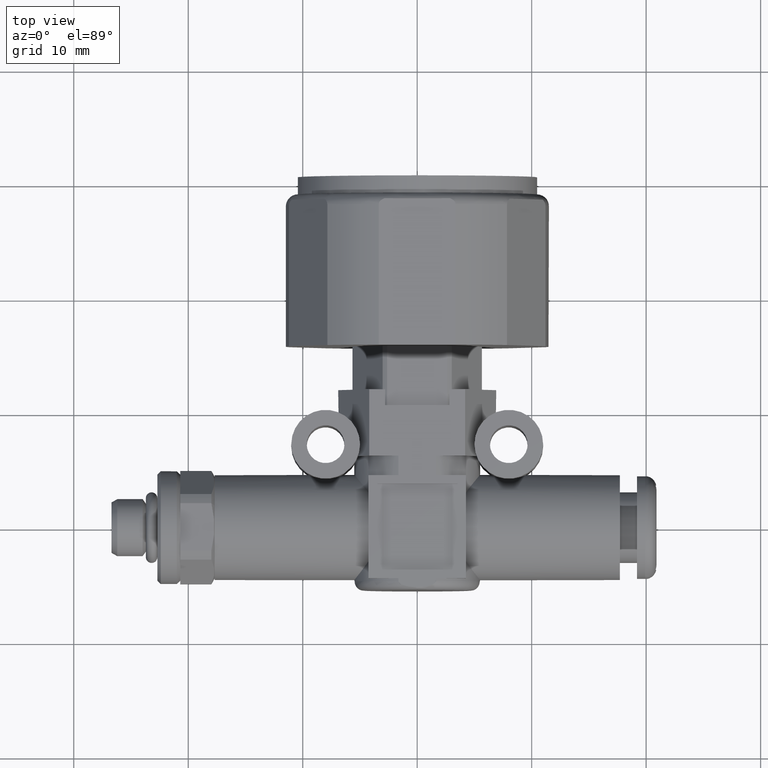
[diagram: clean part render]
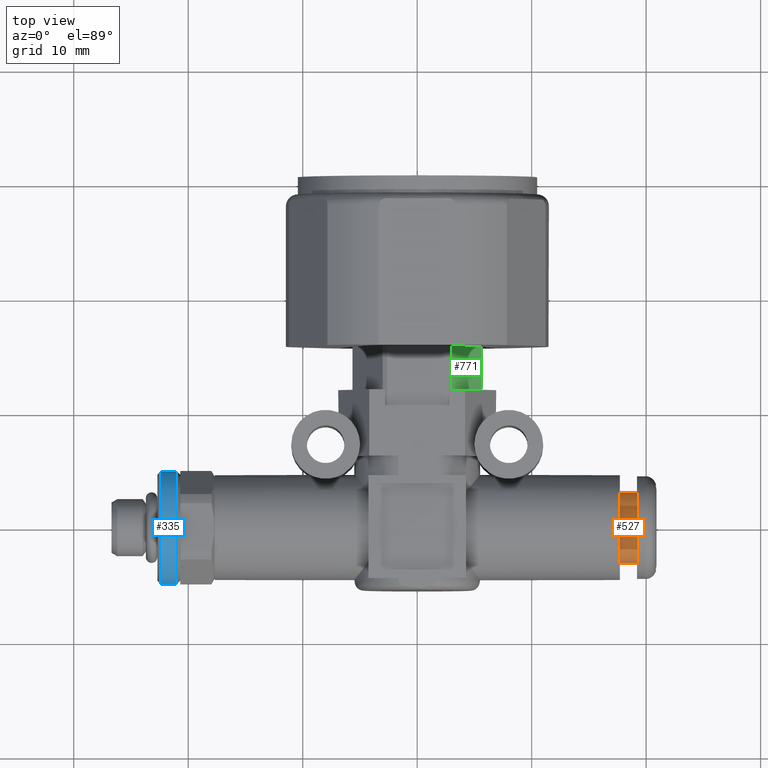
[diagram: same view with three faces highlighted in distinct colors, each labeled with its STEP entity id]
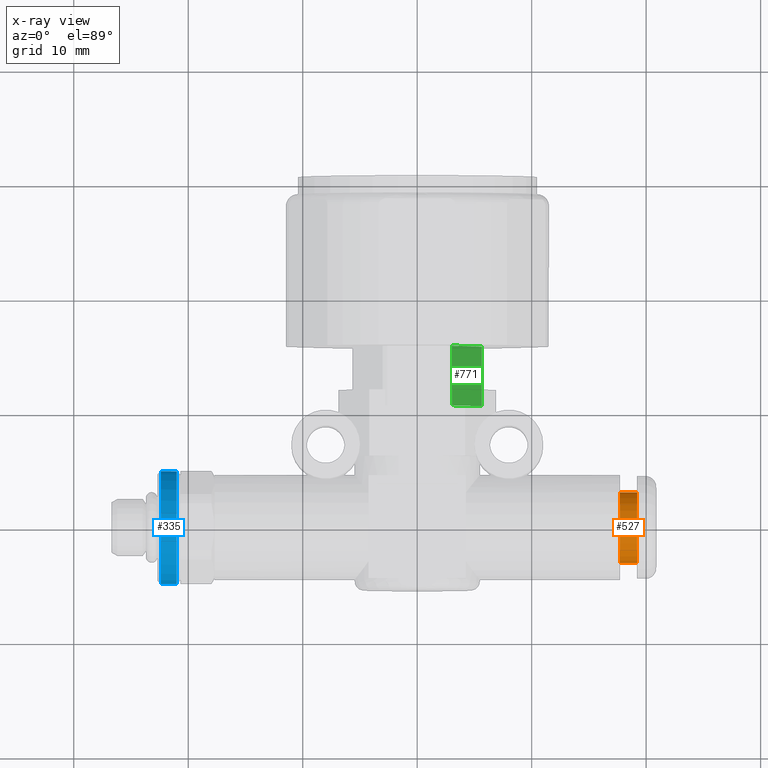
[diagram: x-ray of the same camera — body ghosted, the three highlighted faces saturated]
A machine part, top view with three faces highlighted in distinct colors.
The next image is the same camera in x-ray (body ghosted, the three faces saturated) — at least one of them is partly hidden behind the body in this view.
Their STEP definitions:

[orange] entity #527 — the highlighted cylindrical surface (bore or boss wall) has radius 3.1 mm, axis along (1, 0, 0).
#527 = ADVANCED_FACE( '', ( #1166, #1167 ), #1168, .T. );
#1166 = FACE_OUTER_BOUND( '', #1952, .T. );
#1167 = FACE_OUTER_BOUND( '', #1953, .T. );
#1168 = CYLINDRICAL_SURFACE( '', #1954, 3.10000000000000 );
#1952 = EDGE_LOOP( '', ( #3205 ) );
#1953 = EDGE_LOOP( '', ( #3206 ) );
#1954 = AXIS2_PLACEMENT_3D( '', #3207, #3208, #3209 );
#3205 = ORIENTED_EDGE( '', *, *, #4602, .F. );
#3206 = ORIENTED_EDGE( '', *, *, #4536, .T. );
#3207 = CARTESIAN_POINT( '', ( 8.90000000000000, 0.000000000000000, 0.000000000000000 ) );
#3208 = DIRECTION( '', ( -1.00000000000000, -0.000000000000000, 0.000000000000000 ) );
#3209 = DIRECTION( '', ( -0.000000000000000, 0.000000000000000, -1.00000000000000 ) );
#4536 = EDGE_CURVE( '', #5445, #5445, #5446, .T. );
#4602 = EDGE_CURVE( '', #5553, #5553, #5554, .T. );
#5445 = VERTEX_POINT( '', #6967 );
#5446 = CIRCLE( '', #6968, 3.10000000000000 );
#5553 = VERTEX_POINT( '', #7110 );
#5554 = CIRCLE( '', #7111, 3.10000000000000 );
#6967 = CARTESIAN_POINT( '', ( 1.70000000000000, 0.000000000000000, -3.10000000000000 ) );
#6968 = AXIS2_PLACEMENT_3D( '', #8369, #8370, #8371 );
#7110 = CARTESIAN_POINT( '', ( 3.20000000000000, 0.000000000000000, -3.10000000000000 ) );
#7111 = AXIS2_PLACEMENT_3D( '', #8446, #8447, #8448 );
#8369 = CARTESIAN_POINT( '', ( 1.70000000000000, 0.000000000000000, 0.000000000000000 ) );
#8370 = DIRECTION( '', ( 1.00000000000000, 0.000000000000000, -0.000000000000000 ) );
#8371 = DIRECTION( '', ( -0.000000000000000, 0.000000000000000, -1.00000000000000 ) );
#8446 = CARTESIAN_POINT( '', ( 3.20000000000000, 0.000000000000000, 0.000000000000000 ) );
#8447 = DIRECTION( '', ( 1.00000000000000, 0.000000000000000, -0.000000000000000 ) );
#8448 = DIRECTION( '', ( -0.000000000000000, 0.000000000000000, -1.00000000000000 ) );

[blue] entity #335 — the highlighted cylindrical surface (bore or boss wall) has radius 4.95 mm, axis along (-1, 0, 0).
#335 = ADVANCED_FACE( '', ( #838, #839 ), #840, .T. );
#838 = FACE_OUTER_BOUND( '', #1624, .T. );
#839 = FACE_OUTER_BOUND( '', #1625, .T. );
#840 = CYLINDRICAL_SURFACE( '', #1626, 4.95000000000000 );
#1624 = EDGE_LOOP( '', ( #2405 ) );
#1625 = EDGE_LOOP( '', ( #2406 ) );
#1626 = AXIS2_PLACEMENT_3D( '', #2407, #2408, #2409 );
#2405 = ORIENTED_EDGE( '', *, *, #4287, .F. );
#2406 = ORIENTED_EDGE( '', *, *, #4288, .T. );
#2407 = CARTESIAN_POINT( '', ( 7.30000000000000, 0.000000000000000, 0.000000000000000 ) );
#2408 = DIRECTION( '', ( -1.00000000000000, -0.000000000000000, 0.000000000000000 ) );
#2409 = DIRECTION( '', ( -0.000000000000000, 0.000000000000000, -1.00000000000000 ) );
#4287 = EDGE_CURVE( '', #5010, #5010, #5011, .T. );
#4288 = EDGE_CURVE( '', #5012, #5012, #5013, .T. );
#5010 = VERTEX_POINT( '', #6076 );
#5011 = CIRCLE( '', #6077, 4.95000000000000 );
#5012 = VERTEX_POINT( '', #6078 );
#5013 = CIRCLE( '', #6079, 4.95000000000000 );
#6076 = CARTESIAN_POINT( '', ( 1.70000000000000, 0.000000000000000, -4.95000000000000 ) );
#6077 = AXIS2_PLACEMENT_3D( '', #8038, #8039, #8040 );
#6078 = CARTESIAN_POINT( '', ( 0.300000000000000, 0.000000000000000, -4.95000000000000 ) );
#6079 = AXIS2_PLACEMENT_3D( '', #8041, #8042, #8043 );
#8038 = CARTESIAN_POINT( '', ( 1.70000000000000, 0.000000000000000, 0.000000000000000 ) );
#8039 = DIRECTION( '', ( 1.00000000000000, 0.000000000000000, -0.000000000000000 ) );
#8040 = DIRECTION( '', ( -0.000000000000000, 0.000000000000000, -1.00000000000000 ) );
#8041 = CARTESIAN_POINT( '', ( 0.300000000000000, 0.000000000000000, 0.000000000000000 ) );
#8042 = DIRECTION( '', ( 1.00000000000000, 0.000000000000000, -0.000000000000000 ) );
#8043 = DIRECTION( '', ( -0.000000000000000, 0.000000000000000, -1.00000000000000 ) );

[green] entity #771 — the highlighted planar face has unit normal (-0.866, 0, -0.5).
#771 = ADVANCED_FACE( '', ( #1580 ), #1581, .F. );
#1580 = FACE_OUTER_BOUND( '', #2366, .T. );
#1581 = PLANE( '', #2367 );
#2366 = EDGE_LOOP( '', ( #4228, #4229, #4230, #4231 ) );
#2367 = AXIS2_PLACEMENT_3D( '', #4232, #4233, #4234 );
#4228 = ORIENTED_EDGE( '', *, *, #4356, .F. );
#4229 = ORIENTED_EDGE( '', *, *, #4983, .F. );
#4230 = ORIENTED_EDGE( '', *, *, #4417, .F. );
#4231 = ORIENTED_EDGE( '', *, *, #4608, .F. );
#4232 = CARTESIAN_POINT( '', ( 5.00000000000000, 5.21000000000000, -2.88675134594813 ) );
#4233 = DIRECTION( '', ( -0.500000000000000, 0.000000000000000, 0.866025403784439 ) );
#4234 = DIRECTION( '', ( 0.866025403784439, 0.000000000000000, 0.500000000000000 ) );
#4356 = EDGE_CURVE( '', #5130, #5132, #5133, .T. );
#4417 = EDGE_CURVE( '', #5238, #5240, #5241, .T. );
#4608 = EDGE_CURVE( '', #5132, #5238, #5560, .T. );
#4983 = EDGE_CURVE( '', #5240, #5130, #6045, .F. );
#5130 = VERTEX_POINT( '', #6329 );
#5132 = VERTEX_POINT( '', #6331 );
#5133 = LINE( '', #6332, #6333 );
#5238 = VERTEX_POINT( '', #6575 );
#5240 = VERTEX_POINT( '', #6577 );
#5241 = LINE( '', #6578, #6579 );
#5560 = LINE( '', #7120, #7121 );
#6045 = LINE( '', #8014, #8015 );
#6329 = CARTESIAN_POINT( '', ( 4.77856862964450, 5.21000000000000, -3.01459480722991 ) );
#6331 = CARTESIAN_POINT( '', ( 0.221431370355502, 5.21000000000000, -5.64565923061448 ) );
#6332 = CARTESIAN_POINT( '', ( 5.00000000000000, 5.21000000000000, -2.88675134594813 ) );
#6333 = VECTOR( '', #8140, 1000.00000000000 );
#6575 = CARTESIAN_POINT( '', ( 0.221431370355500, 0.000000000000000, -5.64565923061448 ) );
#6577 = CARTESIAN_POINT( '', ( 4.77856862964450, 0.000000000000000, -3.01459480722991 ) );
#6578 = CARTESIAN_POINT( '', ( 6.73750000000000, 0.000000000000000, -1.88360525323115 ) );
#6579 = VECTOR( '', #8235, 1000.00000000000 );
#7120 = CARTESIAN_POINT( '', ( 0.221431370355499, 0.000000000000000, -5.64565923061448 ) );
#7121 = VECTOR( '', #8452, 1000.00000000000 );
#8014 = CARTESIAN_POINT( '', ( 4.77856862964450, 0.000000000000000, -3.01459480722991 ) );
#8015 = VECTOR( '', #8777, 1000.00000000000 );
#8140 = DIRECTION( '', ( -0.866025403784439, 0.000000000000000, -0.500000000000000 ) );
#8235 = DIRECTION( '', ( 0.866025403784439, -0.000000000000000, 0.500000000000000 ) );
#8452 = DIRECTION( '', ( -0.000000000000000, -1.00000000000000, -0.000000000000000 ) );
#8777 = DIRECTION( '', ( -0.000000000000000, -1.00000000000000, -0.000000000000000 ) );